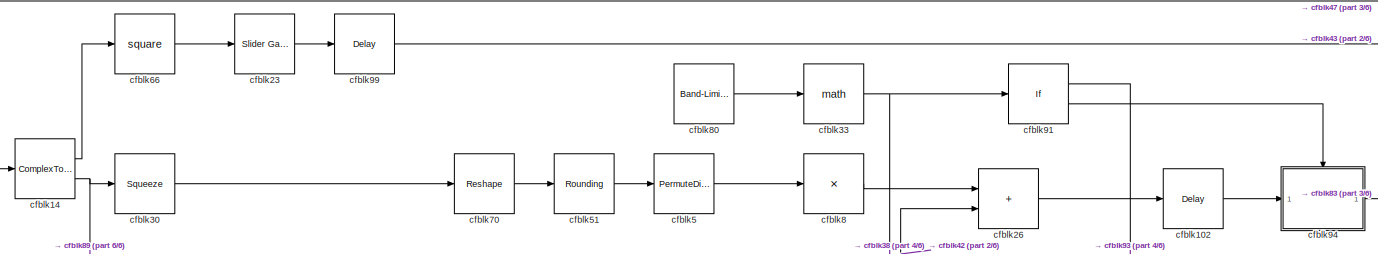
[diagram: root canvas - part 1/6, top left region]
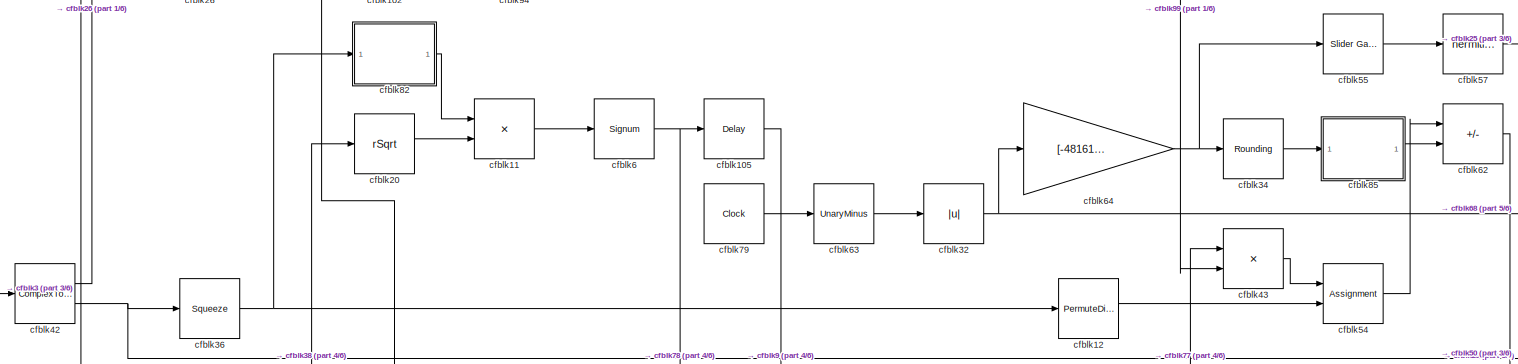
[diagram: root canvas - part 2/6, top center region]
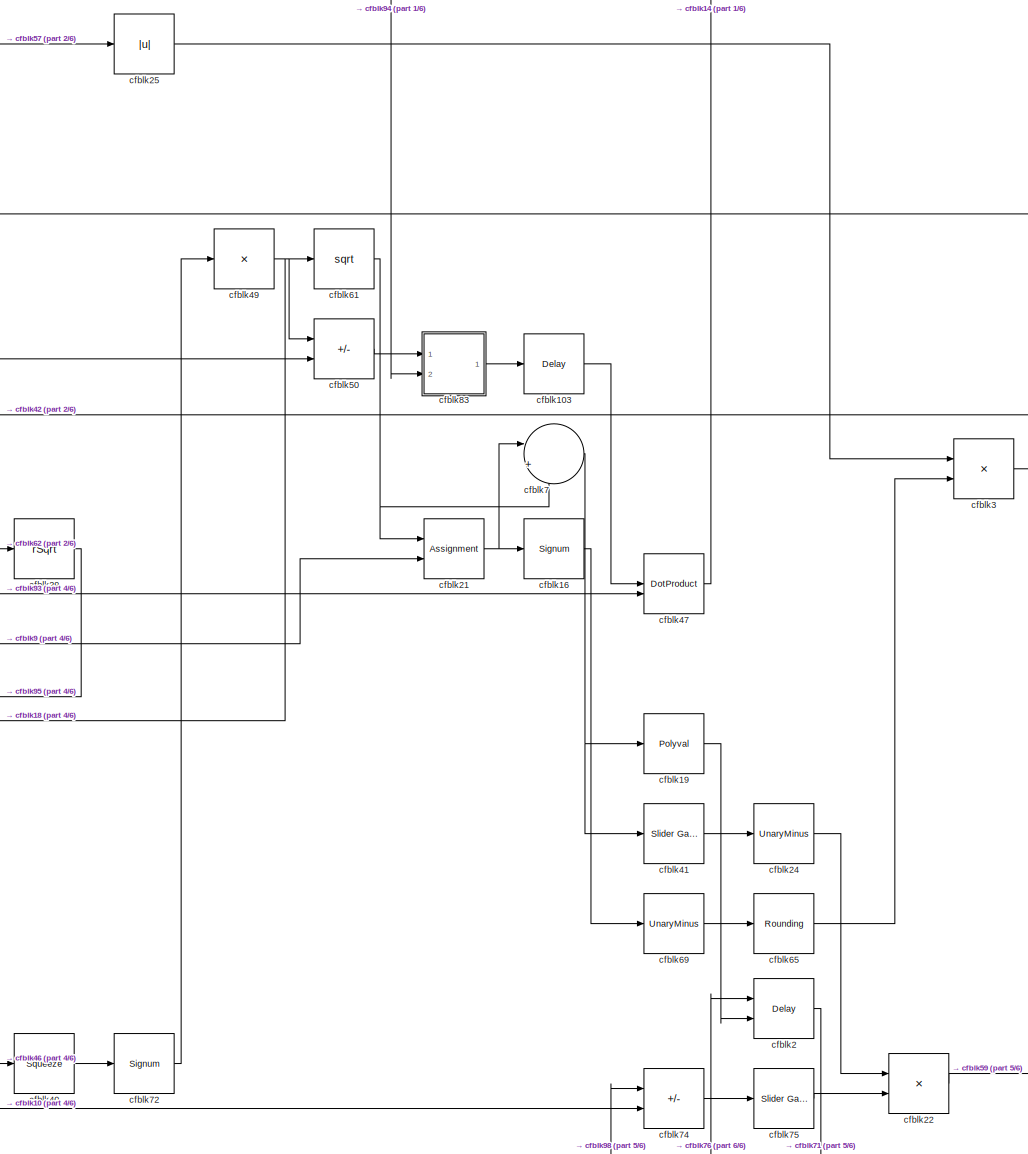
[diagram: root canvas - part 3/6, middle right region]
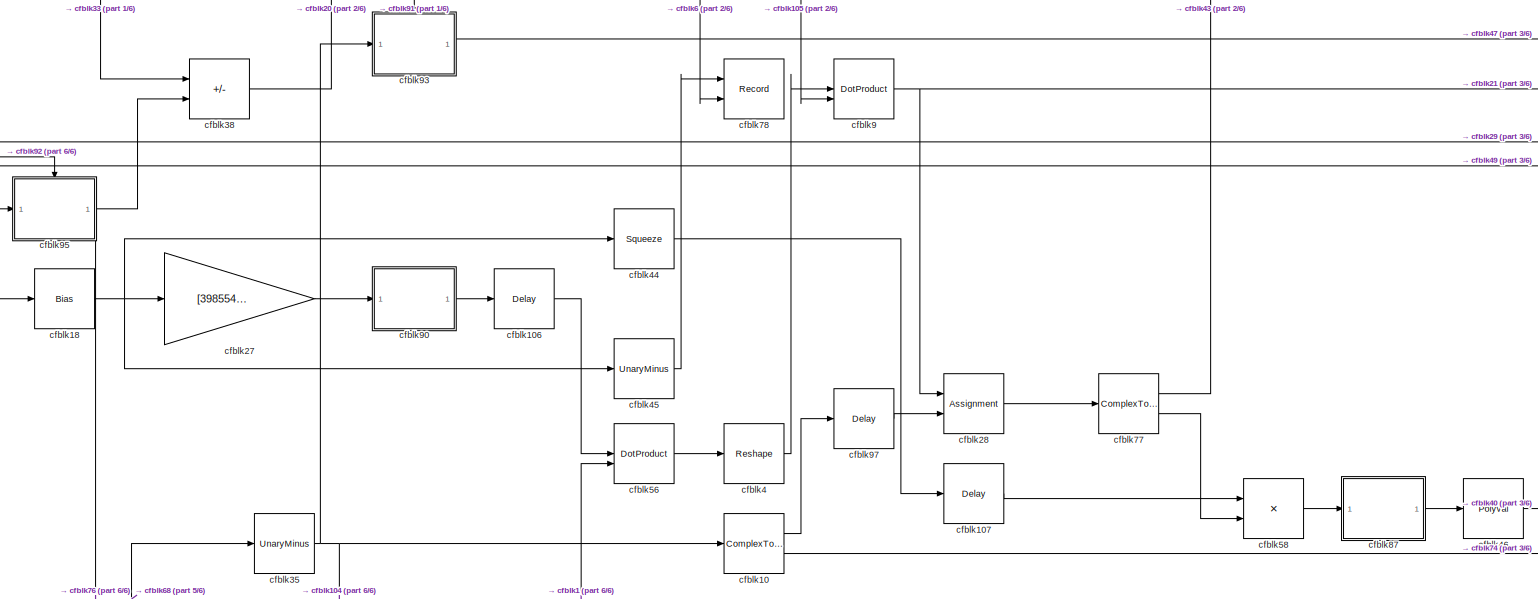
[diagram: root canvas - part 4/6, central region]
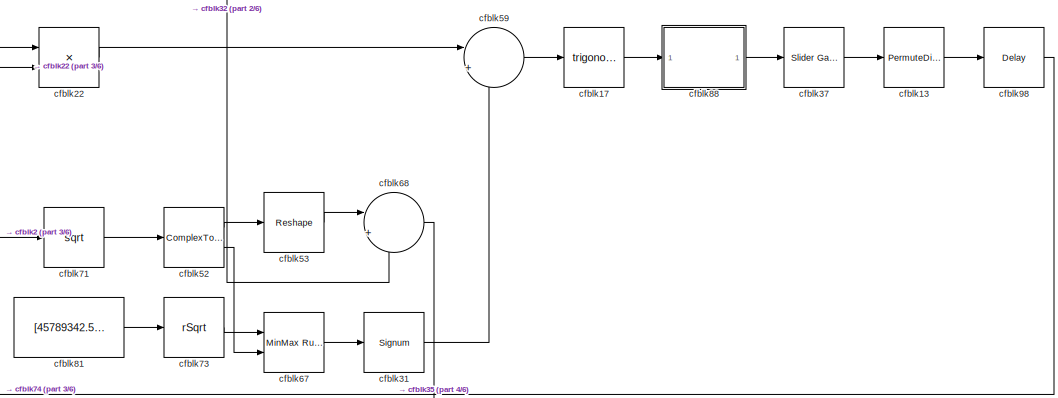
[diagram: root canvas - part 5/6, bottom right region]
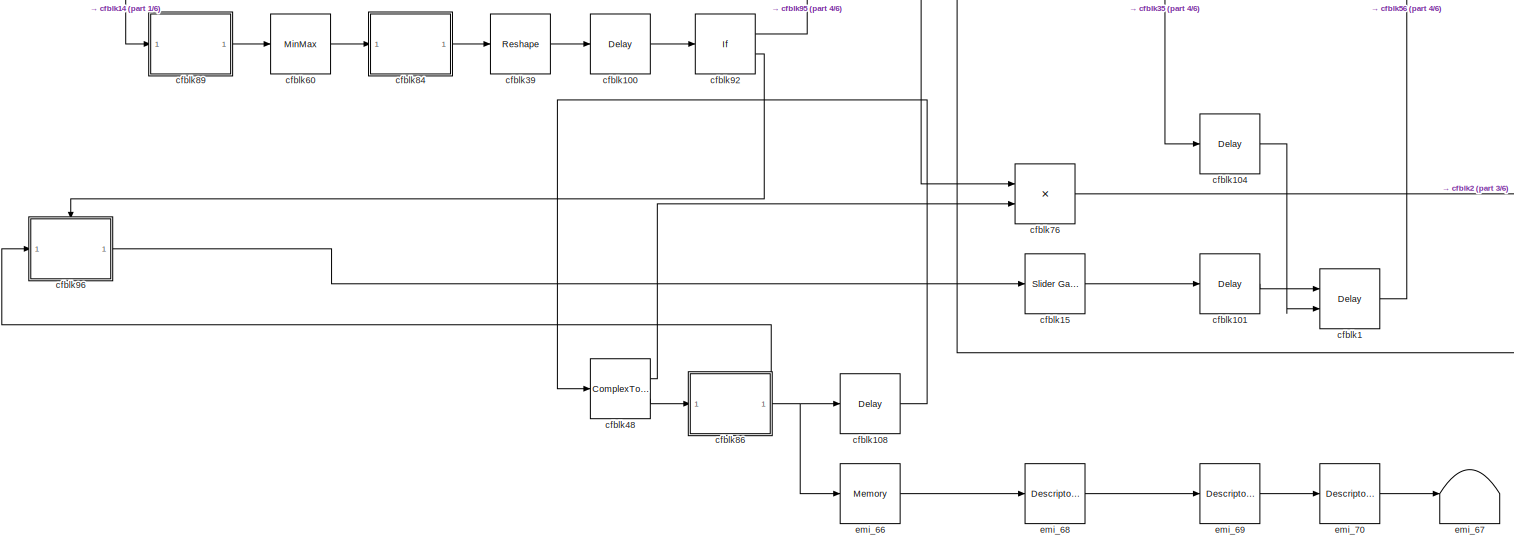
[diagram: root canvas - part 6/6, bottom left region]
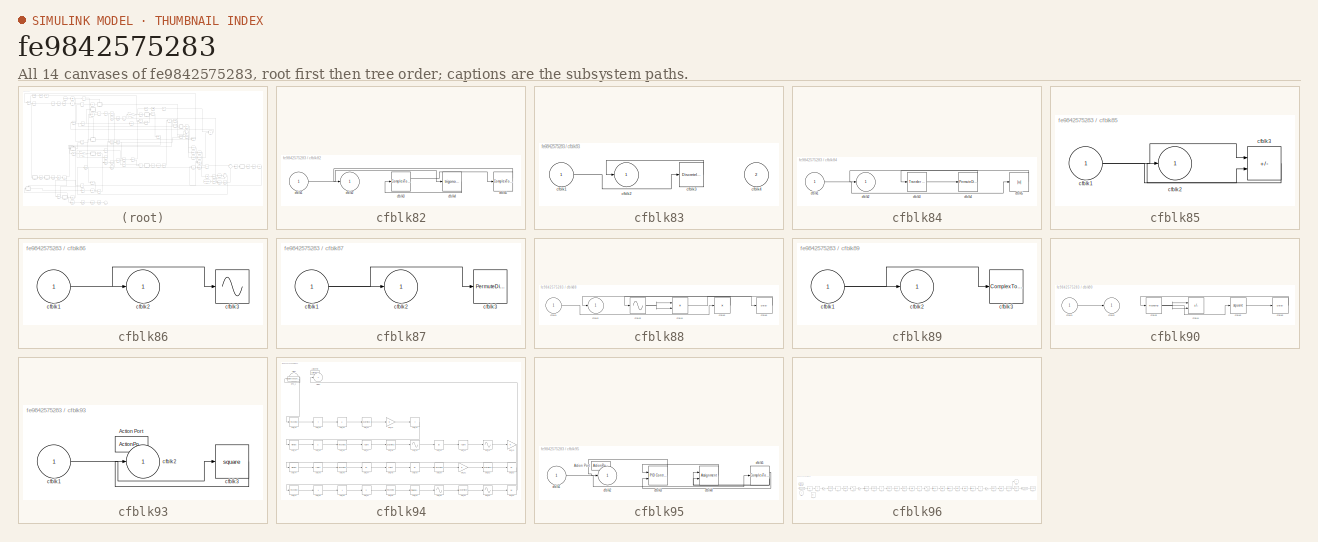
[diagram: thumbnail index - all 14 canvases of the model, root first then tree order]
MODEL slx_fe9842575283
KIND model
CONFIG AbsTol = auto
CONFIG EnableMultiTasking = off
CONFIG FixedStep = auto
CONFIG MaxStep = auto
CONFIG MinStep = auto
CONFIG RelTol = 1e-3
CONFIG SampleTimeConstraint = Unconstrained
CONFIG SolverName = VariableStepAuto
CONFIG StartTime = 0.0
CONFIG StopTime = 10.0
BLOCK [Delay] cfblk1
  DelayLengthSource = Input port
  InputPortMap = u0,p1
  Ports = [2, 1]
  SampleTime = 1
BLOCK [ComplexToRealImag] cfblk10
  Ports = [1, 2]
BLOCK [Delay] cfblk100
  InputPortMap = u0
  Ports = [1, 1]
  SampleTime = 1
BLOCK [Delay] cfblk101
  InputPortMap = u0
  Ports = [1, 1]
  SampleTime = 1
BLOCK [Delay] cfblk102
  InputPortMap = u0
  Ports = [1, 1]
  SampleTime = 1
BLOCK [Delay] cfblk103
  InputPortMap = u0
  Ports = [1, 1]
  SampleTime = 1
BLOCK [Delay] cfblk104
  InputPortMap = u0
  Ports = [1, 1]
  SampleTime = 1
BLOCK [Delay] cfblk105
  InputPortMap = u0
  Ports = [1, 1]
  SampleTime = 1
BLOCK [Delay] cfblk106
  InputPortMap = u0
  Ports = [1, 1]
  SampleTime = 1
BLOCK [Delay] cfblk107
  InputPortMap = u0
  Ports = [1, 1]
  SampleTime = 1
BLOCK [Delay] cfblk108
  InputPortMap = u0
  Ports = [1, 1]
  SampleTime = 1
BLOCK [Product] cfblk11
  Inputs = **
  Ports = [2, 1]
BLOCK [PermuteDimensions] cfblk12
BLOCK [PermuteDimensions] cfblk13
BLOCK [ComplexToMagnitudeAngle] cfblk14
  Ports = [1, 2]
BLOCK [Reference] cfblk15  REF=simulink/Math
Operations/Slider
Gain
  Ports = [1, 1]
  SourceBlock = simulink/Math\nOperations/Slider\nGain
  SourceProductBaseCode = SL
  SourceType = Slider Gain
BLOCK [Signum] cfblk16
BLOCK [Trigonometry] cfblk17
  Ports = [1, 1]
BLOCK [Bias] cfblk18
  Bias = [344195522.461753]
  SaturateOnIntegerOverflow = off
BLOCK [Polyval] cfblk19
  Coefs = [ +2.081618890e-019, -1.441693666e-014, +4.719686976e-010, -8.536869453e-006, +1.621573104e-001, -8.087801117e+001 ]
BLOCK [Delay] cfblk2
  InputPortMap = u0,e6
  Ports = [2, 1]
  SampleTime = 1
  ShowEnablePort = on
BLOCK [Sqrt] cfblk20
  AlgorithmType = Newton-Raphson
  Operator = rSqrt
BLOCK [Assignment] cfblk21
  DiagnosticForDimensions = Warning
  IndexOptions = Index vector (dialog)
  Indices = 1
  OutputSizes = 1
  Ports = [2, 1]
BLOCK [Product] cfblk22
  Ports = [2, 1]
BLOCK [Reference] cfblk23  REF=simulink/Math
Operations/Slider
Gain
  Ports = [1, 1]
  SourceBlock = simulink/Math\nOperations/Slider\nGain
  SourceProductBaseCode = SL
  SourceType = Slider Gain
BLOCK [UnaryMinus] cfblk24
BLOCK [Abs] cfblk25
  SaturateOnIntegerOverflow = off
BLOCK [Sum] cfblk26
  IconShape = rectangular
  Ports = [2, 1]
BLOCK [Gain] cfblk27
  Gain = [398554411.014848]
BLOCK [Assignment] cfblk28
  DiagnosticForDimensions = Warning
  IndexOptions = Index vector (dialog)
  Indices = 1
  OutputSizes = 1
  Ports = [2, 1]
BLOCK [Sqrt] cfblk29
  AlgorithmType = Newton-Raphson
  Operator = rSqrt
BLOCK [Product] cfblk3
  Ports = [2, 1]
BLOCK [Squeeze] cfblk30
BLOCK [Signum] cfblk31
BLOCK [Abs] cfblk32
  SaturateOnIntegerOverflow = off
BLOCK [Math] cfblk33
  Ports = [1, 1]
BLOCK [Rounding] cfblk34
BLOCK [UnaryMinus] cfblk35
BLOCK [Squeeze] cfblk36
BLOCK [Reference] cfblk37  REF=simulink/Math
Operations/Slider
Gain
  Ports = [1, 1]
  SourceBlock = simulink/Math\nOperations/Slider\nGain
  SourceProductBaseCode = SL
  SourceType = Slider Gain
BLOCK [Sum] cfblk38
  IconShape = rectangular
  Inputs = +-
  Ports = [2, 1]
BLOCK [Reshape] cfblk39
  Ports = [1, 1]
BLOCK [Reshape] cfblk4
  Ports = [1, 1]
BLOCK [Squeeze] cfblk40
BLOCK [Reference] cfblk41  REF=simulink/Math
Operations/Slider
Gain
  Ports = [1, 1]
  SourceBlock = simulink/Math\nOperations/Slider\nGain
  SourceProductBaseCode = SL
  SourceType = Slider Gain
BLOCK [ComplexToMagnitudeAngle] cfblk42
  Ports = [1, 2]
BLOCK [Product] cfblk43
  Inputs = **
  Ports = [2, 1]
BLOCK [Squeeze] cfblk44
BLOCK [UnaryMinus] cfblk45
BLOCK [Polyval] cfblk46
  Coefs = [ +2.081618890e-019, -1.441693666e-014, +4.719686976e-010, -8.536869453e-006, +1.621573104e-001, -8.087801117e+001 ]
BLOCK [DotProduct] cfblk47
  OutDataTypeStr = Inherit: Inherit via internal rule
BLOCK [ComplexToRealImag] cfblk48
  Ports = [1, 2]
BLOCK [Product] cfblk49
  Inputs = *
  Ports = [1, 1]
BLOCK [PermuteDimensions] cfblk5
BLOCK [Sum] cfblk50
  IconShape = rectangular
  Inputs = +-
  Ports = [2, 1]
BLOCK [Rounding] cfblk51
BLOCK [ComplexToMagnitudeAngle] cfblk52
  Ports = [1, 2]
BLOCK [Reshape] cfblk53
  Ports = [1, 1]
BLOCK [Assignment] cfblk54
  DiagnosticForDimensions = Warning
  IndexOptions = Index vector (dialog)
  Indices = 1
  OutputSizes = 1
  Ports = [2, 1]
BLOCK [Reference] cfblk55  REF=simulink/Math
Operations/Slider
Gain
  Ports = [1, 1]
  SourceBlock = simulink/Math\nOperations/Slider\nGain
  SourceProductBaseCode = SL
  SourceType = Slider Gain
BLOCK [DotProduct] cfblk56
  OutDataTypeStr = Inherit: Inherit via internal rule
BLOCK [Math] cfblk57
  Operator = hermitian
  Ports = [1, 1]
BLOCK [Product] cfblk58
  Ports = [2, 1]
BLOCK [Sum] cfblk59
  Inputs = |++
  Ports = [2, 1]
BLOCK [Signum] cfblk6
BLOCK [MinMax] cfblk60
  Ports = [1, 1]
BLOCK [Sqrt] cfblk61
BLOCK [Sum] cfblk62
  IconShape = rectangular
  Inputs = +-
  Ports = [2, 1]
BLOCK [UnaryMinus] cfblk63
BLOCK [Gain] cfblk64
  Gain = [-48161092.647964]
BLOCK [Rounding] cfblk65
BLOCK [Math] cfblk66
  Operator = square
  Ports = [1, 1]
BLOCK [Reference] cfblk67  REF=simulink/Math
Operations/MinMax
Running
Resettable
  Ports = [2, 1]
  SourceBlock = simulink/Math\nOperations/MinMax\nRunning\nResettable
  SourceProductBaseCode = SL
  SourceType = MinMax Running Resettable
BLOCK [Sum] cfblk68
  Inputs = |++
  Ports = [2, 1]
BLOCK [UnaryMinus] cfblk69
BLOCK [Sum] cfblk7
  Inputs = |++
  Ports = [2, 1]
BLOCK [Reshape] cfblk70
  Ports = [1, 1]
BLOCK [Sqrt] cfblk71
BLOCK [Signum] cfblk72
BLOCK [Sqrt] cfblk73
  AlgorithmType = Newton-Raphson
  Operator = rSqrt
BLOCK [Sum] cfblk74
  IconShape = rectangular
  Inputs = --
  Ports = [2, 1]
BLOCK [Reference] cfblk75  REF=simulink/Math
Operations/Slider
Gain
  Ports = [1, 1]
  SourceBlock = simulink/Math\nOperations/Slider\nGain
  SourceProductBaseCode = SL
  SourceType = Slider Gain
BLOCK [Product] cfblk76
  Ports = [2, 1]
BLOCK [ComplexToRealImag] cfblk77
  Ports = [1, 2]
BLOCK [Record] cfblk78
  CompatibilityTag = XY
  FileSettingsInternal = {"entries":[{"content":{"excelSettings":{"content":{},"type":"Streamout.ExcelSettings"}},"type":"Streamout.FileSettingStorage","uuid":"ac85a95f-4be8-4778-839d-d844e6bad3ff"}],"packageUris":["http://schema.mathworks.com/mf0/streamout_blocks/R2020a"],"version":"1.0"}
  Layout = [1 1]
  Ports = [2]
  SignalsInternal = {"entries":[{"content":{"signals":[{"content":{"blockPath":["sampleModel400_pp_1568_1_difftest/cfblk78"],"channel":[],"dimensions":[1],"domain":"sampleModel400_pp_1568_1_difftest/cfblk78","lineColor":"#ff6929","plots":[],"port":1,"sid":[""],"signalID":66299,"signalName":"cfblk45"},"type":"RecordBlkView.Signal","uuid":"a7a329db-ddd2-4490-90a3-0e073e7fe2cc"},{"content":{"blockPath":["sampleModel400_...<+458ch>
  VisualizationBindings = {"xyplotplugin":{"info":[{"series":[],"subplotID":1}]}}
BLOCK [Clock] cfblk79
BLOCK [Product] cfblk8
  Inputs = *
  Ports = [1, 1]
BLOCK [Reference] cfblk80  REF=simulink/Sources/Band-Limited
White Noise
  Ports = [0, 1]
  SourceBlock = simulink/Sources/Band-Limited\nWhite Noise
  SourceProductBaseCode = SL
  SourceType = Band-Limited White Noise.
BLOCK [Constant] cfblk81
  SampleTime = 1
  Value = [45789342.582488]
BLOCK [SubSystem] cfblk82
  Ports = [1, 1]
  RequestExecContextInheritance = off
BLOCK [Inport] cfblk82/cfblk1
BLOCK [Outport] cfblk82/cfblk2
BLOCK [ComplexToMagnitudeAngle] cfblk82/cfblk3
  Ports = [1, 2]
BLOCK [Trigonometry] cfblk82/cfblk4
  Ports = [1, 1]
BLOCK [ComplexToMagnitudeAngle] cfblk82/cfblk5
  Ports = [1, 2]
BLOCK [SubSystem] cfblk83
  Ports = [2, 1]
  RequestExecContextInheritance = off
BLOCK [Inport] cfblk83/cfblk1
BLOCK [Outport] cfblk83/cfblk2
BLOCK [DiscreteIntegrator] cfblk83/cfblk3
  ICPrevOutput = DiscIntNeverNeededParam
  ICPrevScaledInput = DiscIntNeverNeededParam
  InitialConditionSetting = Auto
  Ports = [1, 1]
BLOCK [Inport] cfblk83/cfblk4
  Port = 2
BLOCK [SubSystem] cfblk84
  Ports = [1, 1]
  RequestExecContextInheritance = off
BLOCK [Inport] cfblk84/cfblk1
BLOCK [Outport] cfblk84/cfblk2
BLOCK [Reference] cfblk84/cfblk3  REF=simulink/Discrete/Transfer Fcn
First Order
  Ports = [1, 1]
  SourceBlock = simulink/Discrete/Transfer Fcn\nFirst Order
  SourceProductBaseCode = SL
  SourceType = First Order Transfer Fcn
BLOCK [PermuteDimensions] cfblk84/cfblk4
BLOCK [Abs] cfblk84/cfblk5
  SaturateOnIntegerOverflow = off
BLOCK [SubSystem] cfblk85
  Ports = [1, 1]
  RequestExecContextInheritance = off
BLOCK [Inport] cfblk85/cfblk1
BLOCK [Outport] cfblk85/cfblk2
BLOCK [Sum] cfblk85/cfblk3
  IconShape = rectangular
  Inputs = +-
  Ports = [2, 1]
BLOCK [SubSystem] cfblk86
  Ports = [1, 1]
  RequestExecContextInheritance = off
BLOCK [Inport] cfblk86/cfblk1
BLOCK [Outport] cfblk86/cfblk2
BLOCK [Sin] cfblk86/cfblk3
  Ports = [1, 1]
  SampleTime = 0
  TimeSource = Use external signal
BLOCK [SubSystem] cfblk87
  Ports = [1, 1]
  RequestExecContextInheritance = off
BLOCK [Inport] cfblk87/cfblk1
BLOCK [Outport] cfblk87/cfblk2
BLOCK [PermuteDimensions] cfblk87/cfblk3
BLOCK [SubSystem] cfblk88
  Ports = [1, 1]
  RequestExecContextInheritance = off
BLOCK [Inport] cfblk88/cfblk1
BLOCK [Outport] cfblk88/cfblk2
BLOCK [Sin] cfblk88/cfblk3
  Ports = [1, 1]
  SampleTime = 0
  TimeSource = Use external signal
BLOCK [Product] cfblk88/cfblk4
  Inputs = **
  Ports = [2, 1]
BLOCK [Product] cfblk88/cfblk5
  Inputs = *
  Ports = [1, 1]
BLOCK [Delay] cfblk88/cfblk6
  InputPortMap = u0
  Ports = [1, 1]
  SampleTime = 1
BLOCK [SubSystem] cfblk89
  Ports = [1, 1]
  RequestExecContextInheritance = off
BLOCK [Inport] cfblk89/cfblk1
BLOCK [Outport] cfblk89/cfblk2
BLOCK [ComplexToRealImag] cfblk89/cfblk3
  Ports = [1, 2]
BLOCK [DotProduct] cfblk9
  OutDataTypeStr = Inherit: Inherit via internal rule
BLOCK [SubSystem] cfblk90
  Ports = [1, 1]
  RequestExecContextInheritance = off
BLOCK [Inport] cfblk90/cfblk1
BLOCK [Outport] cfblk90/cfblk2
BLOCK [Rounding] cfblk90/cfblk3
BLOCK [Sum] cfblk90/cfblk4
  IconShape = rectangular
  Inputs = -+
  Ports = [2, 1]
BLOCK [Math] cfblk90/cfblk5
  Operator = square
  Ports = [1, 1]
BLOCK [Delay] cfblk90/cfblk6
  InputPortMap = u0
  Ports = [1, 1]
  SampleTime = 1
BLOCK [If] cfblk91
  IfExpression = u1 >= 0
  Ports = [1, 2]
  SampleTime = 1
BLOCK [If] cfblk92
  IfExpression = u1 >= 0
  Ports = [1, 2]
  SampleTime = 1
BLOCK [SubSystem] cfblk93
  Ports = [1, 1, 0, 0, 0, 0, 0, 1]
  RequestExecContextInheritance = off
  TreatAsAtomicUnit = on
BLOCK [ActionPort] cfblk93/Action Port
  ActionPortLabel = if(u1 >= 0)
BLOCK [Inport] cfblk93/cfblk1
BLOCK [Outport] cfblk93/cfblk2
BLOCK [Math] cfblk93/cfblk3
  Operator = square
  Ports = [1, 1]
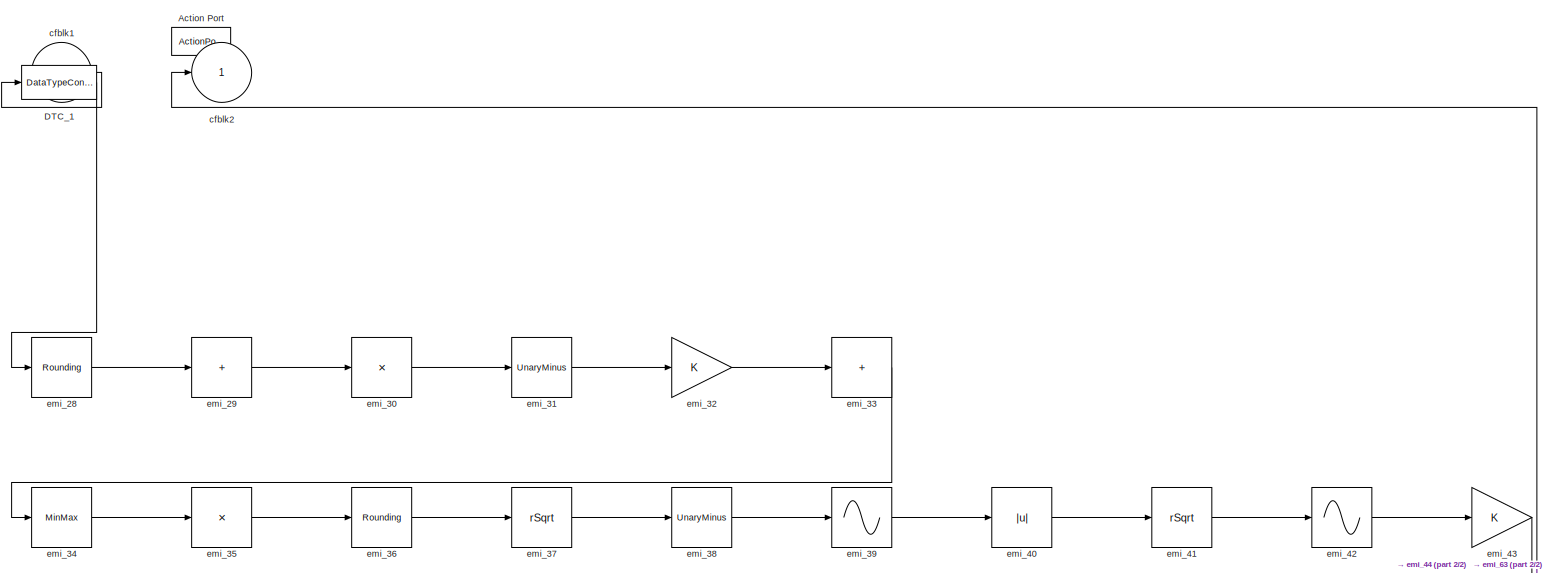
[diagram: cfblk94 - part 1/2, full width, middle band]
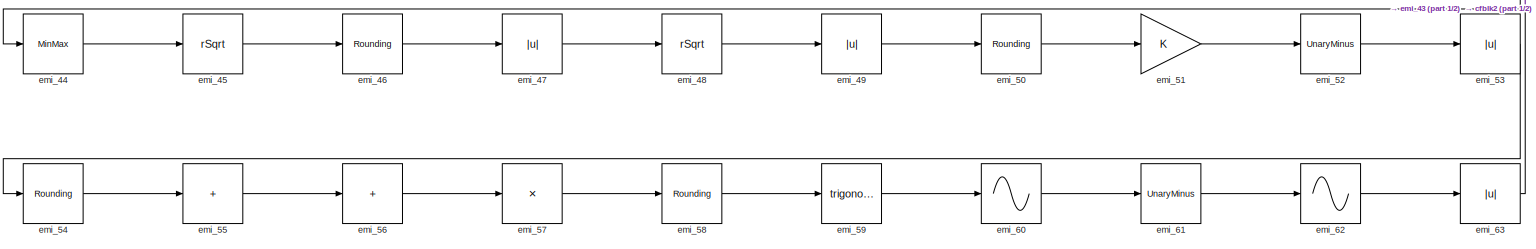
[diagram: cfblk94 - part 2/2, full width, bottom band]
BLOCK [SubSystem] cfblk94
  Ports = [1, 1, 0, 0, 0, 0, 0, 1]
  RequestExecContextInheritance = off
  TreatAsAtomicUnit = on
BLOCK [ActionPort] cfblk94/Action Port
  ActionPortLabel = else
BLOCK [DataTypeConversion] cfblk94/DTC_1
  OutDataTypeStr = double
  RndMeth = Floor
  SaturateOnIntegerOverflow = off
BLOCK [Inport] cfblk94/cfblk1
BLOCK [Outport] cfblk94/cfblk2
BLOCK [Rounding] cfblk94/emi_28
BLOCK [Sum] cfblk94/emi_29
  IconShape = rectangular
  Inputs = +
  Ports = [1, 1]
BLOCK [Product] cfblk94/emi_30
  Inputs = *
  Ports = [1, 1]
BLOCK [UnaryMinus] cfblk94/emi_31
BLOCK [Gain] cfblk94/emi_32
BLOCK [Sum] cfblk94/emi_33
  IconShape = rectangular
  Inputs = +
  Ports = [1, 1]
BLOCK [MinMax] cfblk94/emi_34
  Ports = [1, 1]
BLOCK [Product] cfblk94/emi_35
  Inputs = *
  Ports = [1, 1]
BLOCK [Rounding] cfblk94/emi_36
BLOCK [Sqrt] cfblk94/emi_37
  Operator = rSqrt
BLOCK [UnaryMinus] cfblk94/emi_38
BLOCK [Sin] cfblk94/emi_39
  Ports = [1, 1]
  SampleTime = 0
  TimeSource = Use external signal
BLOCK [Abs] cfblk94/emi_40
  SaturateOnIntegerOverflow = off
BLOCK [Sqrt] cfblk94/emi_41
  Operator = rSqrt
BLOCK [Sin] cfblk94/emi_42
  Ports = [1, 1]
  SampleTime = 0
  TimeSource = Use external signal
BLOCK [Gain] cfblk94/emi_43
BLOCK [MinMax] cfblk94/emi_44
  Ports = [1, 1]
BLOCK [Sqrt] cfblk94/emi_45
  Operator = rSqrt
BLOCK [Rounding] cfblk94/emi_46
BLOCK [Abs] cfblk94/emi_47
  SaturateOnIntegerOverflow = off
BLOCK [Sqrt] cfblk94/emi_48
  Operator = rSqrt
BLOCK [Abs] cfblk94/emi_49
  SaturateOnIntegerOverflow = off
BLOCK [Rounding] cfblk94/emi_50
BLOCK [Gain] cfblk94/emi_51
BLOCK [UnaryMinus] cfblk94/emi_52
BLOCK [Abs] cfblk94/emi_53
  SaturateOnIntegerOverflow = off
BLOCK [Rounding] cfblk94/emi_54
BLOCK [Sum] cfblk94/emi_55
  IconShape = rectangular
  Inputs = +
  Ports = [1, 1]
BLOCK [Sum] cfblk94/emi_56
  IconShape = rectangular
  Inputs = +
  Ports = [1, 1]
BLOCK [Product] cfblk94/emi_57
  Inputs = *
  Ports = [1, 1]
BLOCK [Rounding] cfblk94/emi_58
BLOCK [Trigonometry] cfblk94/emi_59
  Ports = [1, 1]
BLOCK [Sin] cfblk94/emi_60
  Ports = [1, 1]
  SampleTime = 0
  TimeSource = Use external signal
BLOCK [UnaryMinus] cfblk94/emi_61
BLOCK [Sin] cfblk94/emi_62
  Ports = [1, 1]
  SampleTime = 0
  TimeSource = Use external signal
BLOCK [Abs] cfblk94/emi_63
  SaturateOnIntegerOverflow = off
BLOCK [SubSystem] cfblk95
  Ports = [1, 1, 0, 0, 0, 0, 0, 1]
  RequestExecContextInheritance = off
  TreatAsAtomicUnit = on
BLOCK [ActionPort] cfblk95/Action Port
  ActionPortLabel = if(u1 >= 0)
BLOCK [Inport] cfblk95/cfblk1
BLOCK [Outport] cfblk95/cfblk2
BLOCK [Reference] cfblk95/cfblk3  REF=slpidlib/PID Controller (2DOF)
  Ports = [2, 1]
  SourceBlock = slpidlib/PID Controller (2DOF)
  SourceProductBaseCode = SL
  SourceType = PID 2dof
BLOCK [Assignment] cfblk95/cfblk4
  DiagnosticForDimensions = Warning
  IndexOptions = Index vector (dialog)
  Indices = 1
  OutputSizes = 1
  Ports = [2, 1]
BLOCK [ComplexToMagnitudeAngle] cfblk95/cfblk5
  Ports = [1, 2]
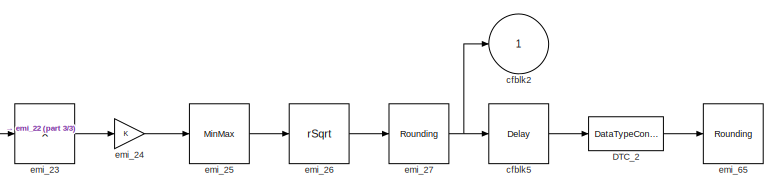
[diagram: cfblk96 - part 1/3, middle right region]
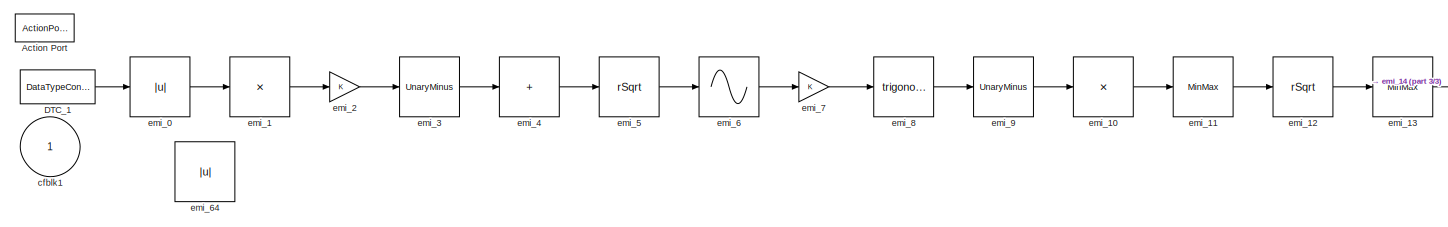
[diagram: cfblk96 - part 2/3, middle left region]
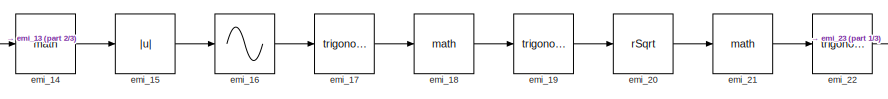
[diagram: cfblk96 - part 3/3, central region]
BLOCK [SubSystem] cfblk96
  Ports = [1, 1, 0, 0, 0, 0, 0, 1]
  RequestExecContextInheritance = off
  TreatAsAtomicUnit = on
BLOCK [ActionPort] cfblk96/Action Port
  ActionPortLabel = else
BLOCK [DataTypeConversion] cfblk96/DTC_1
  OutDataTypeStr = double
  RndMeth = Floor
  SaturateOnIntegerOverflow = off
BLOCK [DataTypeConversion] cfblk96/DTC_2
  OutDataTypeStr = double
  RndMeth = Floor
  SaturateOnIntegerOverflow = off
BLOCK [Inport] cfblk96/cfblk1
BLOCK [Outport] cfblk96/cfblk2
BLOCK [Delay] cfblk96/cfblk5
  InputPortMap = u0
  Ports = [1, 1]
BLOCK [Abs] cfblk96/emi_0
  SaturateOnIntegerOverflow = off
BLOCK [Product] cfblk96/emi_1
  Inputs = *
  Ports = [1, 1]
BLOCK [Product] cfblk96/emi_10
  Inputs = *
  Ports = [1, 1]
BLOCK [MinMax] cfblk96/emi_11
  Ports = [1, 1]
BLOCK [Sqrt] cfblk96/emi_12
  Operator = rSqrt
BLOCK [MinMax] cfblk96/emi_13
  Ports = [1, 1]
BLOCK [Math] cfblk96/emi_14
  Ports = [1, 1]
BLOCK [Abs] cfblk96/emi_15
  SaturateOnIntegerOverflow = off
BLOCK [Sin] cfblk96/emi_16
  Ports = [1, 1]
  SampleTime = 0
  TimeSource = Use external signal
BLOCK [Trigonometry] cfblk96/emi_17
  Ports = [1, 1]
BLOCK [Math] cfblk96/emi_18
  Ports = [1, 1]
BLOCK [Trigonometry] cfblk96/emi_19
  Ports = [1, 1]
BLOCK [Gain] cfblk96/emi_2
BLOCK [Sqrt] cfblk96/emi_20
  Operator = rSqrt
BLOCK [Math] cfblk96/emi_21
  Ports = [1, 1]
BLOCK [Trigonometry] cfblk96/emi_22
  Ports = [1, 1]
BLOCK [Product] cfblk96/emi_23
  Inputs = *
  Ports = [1, 1]
BLOCK [Gain] cfblk96/emi_24
BLOCK [MinMax] cfblk96/emi_25
  Ports = [1, 1]
BLOCK [Sqrt] cfblk96/emi_26
  Operator = rSqrt
BLOCK [Rounding] cfblk96/emi_27
BLOCK [UnaryMinus] cfblk96/emi_3
BLOCK [Sum] cfblk96/emi_4
  IconShape = rectangular
  Inputs = +
  Ports = [1, 1]
BLOCK [Sqrt] cfblk96/emi_5
  Operator = rSqrt
BLOCK [Sin] cfblk96/emi_6
  Ports = [1, 1]
  SampleTime = 0
  TimeSource = Use external signal
BLOCK [Abs] cfblk96/emi_64
  SaturateOnIntegerOverflow = off
BLOCK [Rounding] cfblk96/emi_65
BLOCK [Gain] cfblk96/emi_7
BLOCK [Trigonometry] cfblk96/emi_8
  Ports = [1, 1]
BLOCK [UnaryMinus] cfblk96/emi_9
BLOCK [Delay] cfblk97
  InputPortMap = u0
  Ports = [1, 1]
  SampleTime = 1
BLOCK [Delay] cfblk98
  InputPortMap = u0
  Ports = [1, 1]
  SampleTime = 1
BLOCK [Delay] cfblk99
  InputPortMap = u0
  Ports = [1, 1]
  SampleTime = 1
BLOCK [Memory] emi_66
BLOCK [Terminator] emi_67
BLOCK [DescriptorStateSpace] emi_68
  Ports = [1, 1]
BLOCK [DescriptorStateSpace] emi_69
  Ports = [1, 1]
BLOCK [DescriptorStateSpace] emi_70
  Ports = [1, 1]
LINE cfblk100:1 -> cfblk92:1
LINE cfblk101:1 -> cfblk1:1
LINE cfblk102:1 -> cfblk94:1
LINE cfblk103:1 -> cfblk47:1
LINE cfblk104:1 -> cfblk1:2
LINE cfblk105:1 -> cfblk9:2
LINE cfblk106:1 -> cfblk56:1
LINE cfblk107:1 -> cfblk58:1
LINE cfblk108:1 -> cfblk48:1
LINE cfblk10:1 -> cfblk97:1
LINE cfblk10:2 -> cfblk74:2
LINE cfblk11:1 -> cfblk6:1
LINE cfblk12:1 -> cfblk54:2
LINE cfblk13:1 -> cfblk98:1
LINE cfblk14:1 -> cfblk66:1
NET cfblk14:2 -> cfblk30:1, cfblk89:1
LINE cfblk15:1 -> cfblk101:1
LINE cfblk16:1 -> cfblk69:1
LINE cfblk17:1 -> cfblk88:1
NET cfblk18:1 -> cfblk27:1, cfblk44:1, cfblk45:1
LINE cfblk19:1 -> cfblk2:2
LINE cfblk1:1 -> cfblk56:2
LINE cfblk20:1 -> cfblk11:2
NET cfblk21:1 -> cfblk16:1, cfblk7:1
LINE cfblk22:1 -> cfblk59:1
LINE cfblk23:1 -> cfblk99:1
LINE cfblk24:1 -> cfblk22:1
LINE cfblk25:1 -> cfblk3:1
LINE cfblk26:1 -> cfblk102:1
LINE cfblk27:1 -> cfblk90:1
LINE cfblk28:1 -> cfblk77:1
LINE cfblk29:1 -> cfblk95:1
LINE cfblk2:1 -> cfblk71:1
LINE cfblk30:1 -> cfblk70:1
LINE cfblk31:1 -> cfblk59:2
NET cfblk32:1 -> cfblk64:1, cfblk68:2
NET cfblk33:1 -> cfblk38:1, cfblk91:1
LINE cfblk34:1 -> cfblk85:1
NET cfblk35:1 -> cfblk104:1, cfblk10:1, cfblk93:1
NET cfblk36:1 -> cfblk12:1, cfblk82:1
LINE cfblk37:1 -> cfblk13:1
LINE cfblk38:1 -> cfblk20:1
LINE cfblk39:1 -> cfblk100:1
LINE cfblk3:1 -> cfblk42:1
LINE cfblk40:1 -> cfblk72:1
LINE cfblk41:1 -> cfblk24:1
LINE cfblk42:1 -> cfblk26:2
NET cfblk42:2 -> cfblk36:1, cfblk50:2
LINE cfblk43:1 -> cfblk54:1
LINE cfblk44:1 -> cfblk107:1
LINE cfblk45:1 -> cfblk78:1
LINE cfblk46:1 -> cfblk40:1
LINE cfblk47:1 -> cfblk14:1
LINE cfblk48:1 -> cfblk76:2
LINE cfblk48:2 -> cfblk86:1
NET cfblk49:1 -> cfblk18:1, cfblk50:1, cfblk61:1
LINE cfblk4:1 -> cfblk9:1
LINE cfblk50:1 -> cfblk83:1
LINE cfblk51:1 -> cfblk5:1
LINE cfblk52:1 -> cfblk53:1
LINE cfblk52:2 -> cfblk67:2
LINE cfblk53:1 -> cfblk68:1
LINE cfblk54:1 -> cfblk62:1
LINE cfblk55:1 -> cfblk57:1
LINE cfblk56:1 -> cfblk4:1
LINE cfblk57:1 -> cfblk25:1
LINE cfblk58:1 -> cfblk87:1
LINE cfblk59:1 -> cfblk17:1
LINE cfblk5:1 -> cfblk8:1
LINE cfblk60:1 -> cfblk84:1
NET cfblk61:1 -> cfblk21:1, cfblk7:2
LINE cfblk62:1 -> cfblk29:1
LINE cfblk63:1 -> cfblk32:1
NET cfblk64:1 -> cfblk34:1, cfblk55:1
LINE cfblk65:1 -> cfblk3:2
LINE cfblk66:1 -> cfblk23:1
LINE cfblk67:1 -> cfblk31:1
LINE cfblk68:1 -> cfblk35:1
LINE cfblk69:1 -> cfblk65:1
NET cfblk6:1 -> cfblk105:1, cfblk78:2
LINE cfblk70:1 -> cfblk51:1
LINE cfblk71:1 -> cfblk52:1
LINE cfblk72:1 -> cfblk49:1
LINE cfblk73:1 -> cfblk67:1
LINE cfblk74:1 -> cfblk75:1
LINE cfblk75:1 -> cfblk22:2
LINE cfblk76:1 -> cfblk2:1
LINE cfblk77:1 -> cfblk43:1
LINE cfblk77:2 -> cfblk58:2
LINE cfblk79:1 -> cfblk63:1
NET cfblk7:1 -> cfblk19:1, cfblk41:1
LINE cfblk80:1 -> cfblk33:1
LINE cfblk81:1 -> cfblk73:1
LINE cfblk82/cfblk1:1 -> cfblk82/cfblk4:1
LINE cfblk82/cfblk3:1 -> cfblk82/cfblk5:1
LINE cfblk82/cfblk4:1 -> cfblk82/cfblk3:1
LINE cfblk82/cfblk5:1 -> cfblk82/cfblk2:1
LINE cfblk82:1 -> cfblk11:1
LINE cfblk83/cfblk1:1 -> cfblk83/cfblk3:1
LINE cfblk83/cfblk3:1 -> cfblk83/cfblk2:1
LINE cfblk83:1 -> cfblk103:1
LINE cfblk84/cfblk1:1 -> cfblk84/cfblk5:1
LINE cfblk84/cfblk3:1 -> cfblk84/cfblk4:1
LINE cfblk84/cfblk4:1 -> cfblk84/cfblk2:1
LINE cfblk84/cfblk5:1 -> cfblk84/cfblk3:1
LINE cfblk84:1 -> cfblk39:1
NET cfblk85/cfblk1:1 -> cfblk85/cfblk3:1, cfblk85/cfblk3:2
LINE cfblk85/cfblk3:1 -> cfblk85/cfblk2:1
LINE cfblk85:1 -> cfblk62:2
NET cfblk86/cfblk1:1 -> cfblk86/cfblk2:1, cfblk86/cfblk3:1
NET cfblk86:1 -> cfblk108:1, cfblk96:1, emi_66:1
NET cfblk87/cfblk1:1 -> cfblk87/cfblk2:1, cfblk87/cfblk3:1
LINE cfblk87:1 -> cfblk46:1
LINE cfblk88/cfblk1:1 -> cfblk88/cfblk5:1
NET cfblk88/cfblk3:1 -> cfblk88/cfblk4:1, cfblk88/cfblk4:2
LINE cfblk88/cfblk4:1 -> cfblk88/cfblk6:1
LINE cfblk88/cfblk5:1 -> cfblk88/cfblk2:1
LINE cfblk88/cfblk6:1 -> cfblk88/cfblk3:1
LINE cfblk88:1 -> cfblk37:1
NET cfblk89/cfblk1:1 -> cfblk89/cfblk2:1, cfblk89/cfblk3:1
LINE cfblk89:1 -> cfblk60:1
LINE cfblk8:1 -> cfblk26:1
LINE cfblk90/cfblk1:1 -> cfblk90/cfblk2:1
NET cfblk90/cfblk3:1 -> cfblk90/cfblk4:1, cfblk90/cfblk4:2, cfblk90/cfblk5:1
LINE cfblk90/cfblk5:1 -> cfblk90/cfblk6:1
LINE cfblk90/cfblk6:1 -> cfblk90/cfblk3:1
LINE cfblk90:1 -> cfblk106:1
LINE cfblk91:1 -> cfblk93:ifaction
LINE cfblk91:2 -> cfblk94:ifaction
LINE cfblk92:1 -> cfblk95:ifaction
LINE cfblk92:2 -> cfblk96:ifaction
LINE cfblk93/cfblk1:1 -> cfblk93/cfblk3:1
LINE cfblk93/cfblk3:1 -> cfblk93/cfblk2:1
LINE cfblk93:1 -> cfblk47:2
LINE cfblk94/DTC_1:1 -> cfblk94/emi_28:1
LINE cfblk94/cfblk1:1 -> cfblk94/DTC_1:1
LINE cfblk94/emi_28:1 -> cfblk94/emi_29:1
LINE cfblk94/emi_29:1 -> cfblk94/emi_30:1
LINE cfblk94/emi_30:1 -> cfblk94/emi_31:1
LINE cfblk94/emi_31:1 -> cfblk94/emi_32:1
LINE cfblk94/emi_32:1 -> cfblk94/emi_33:1
LINE cfblk94/emi_33:1 -> cfblk94/emi_34:1
LINE cfblk94/emi_34:1 -> cfblk94/emi_35:1
LINE cfblk94/emi_35:1 -> cfblk94/emi_36:1
LINE cfblk94/emi_36:1 -> cfblk94/emi_37:1
LINE cfblk94/emi_37:1 -> cfblk94/emi_38:1
LINE cfblk94/emi_38:1 -> cfblk94/emi_39:1
LINE cfblk94/emi_39:1 -> cfblk94/emi_40:1
LINE cfblk94/emi_40:1 -> cfblk94/emi_41:1
LINE cfblk94/emi_41:1 -> cfblk94/emi_42:1
LINE cfblk94/emi_42:1 -> cfblk94/emi_43:1
LINE cfblk94/emi_43:1 -> cfblk94/emi_44:1
LINE cfblk94/emi_44:1 -> cfblk94/emi_45:1
LINE cfblk94/emi_45:1 -> cfblk94/emi_46:1
LINE cfblk94/emi_46:1 -> cfblk94/emi_47:1
LINE cfblk94/emi_47:1 -> cfblk94/emi_48:1
LINE cfblk94/emi_48:1 -> cfblk94/emi_49:1
LINE cfblk94/emi_49:1 -> cfblk94/emi_50:1
LINE cfblk94/emi_50:1 -> cfblk94/emi_51:1
LINE cfblk94/emi_51:1 -> cfblk94/emi_52:1
LINE cfblk94/emi_52:1 -> cfblk94/emi_53:1
LINE cfblk94/emi_53:1 -> cfblk94/emi_54:1
LINE cfblk94/emi_54:1 -> cfblk94/emi_55:1
LINE cfblk94/emi_55:1 -> cfblk94/emi_56:1
LINE cfblk94/emi_56:1 -> cfblk94/emi_57:1
LINE cfblk94/emi_57:1 -> cfblk94/emi_58:1
LINE cfblk94/emi_58:1 -> cfblk94/emi_59:1
LINE cfblk94/emi_59:1 -> cfblk94/emi_60:1
LINE cfblk94/emi_60:1 -> cfblk94/emi_61:1
LINE cfblk94/emi_61:1 -> cfblk94/emi_62:1
LINE cfblk94/emi_62:1 -> cfblk94/emi_63:1
LINE cfblk94/emi_63:1 -> cfblk94/cfblk2:1
LINE cfblk94:1 -> cfblk83:2
LINE cfblk95/cfblk1:1 -> cfblk95/cfblk5:1
LINE cfblk95/cfblk3:1 -> cfblk95/cfblk2:1
LINE cfblk95/cfblk4:1 -> cfblk95/cfblk3:1
LINE cfblk95/cfblk5:1 -> cfblk95/cfblk3:2
NET cfblk95/cfblk5:2 -> cfblk95/cfblk4:1, cfblk95/cfblk4:2
NET cfblk95:1 -> cfblk38:2, cfblk76:1
LINE cfblk96/DTC_1:1 -> cfblk96/emi_0:1
LINE cfblk96/DTC_2:1 -> cfblk96/emi_65:1
LINE cfblk96/cfblk5:1 -> cfblk96/DTC_2:1
LINE cfblk96/emi_0:1 -> cfblk96/emi_1:1
LINE cfblk96/emi_10:1 -> cfblk96/emi_11:1
LINE cfblk96/emi_11:1 -> cfblk96/emi_12:1
LINE cfblk96/emi_12:1 -> cfblk96/emi_13:1
LINE cfblk96/emi_13:1 -> cfblk96/emi_14:1
LINE cfblk96/emi_14:1 -> cfblk96/emi_15:1
LINE cfblk96/emi_15:1 -> cfblk96/emi_16:1
LINE cfblk96/emi_16:1 -> cfblk96/emi_17:1
LINE cfblk96/emi_17:1 -> cfblk96/emi_18:1
LINE cfblk96/emi_18:1 -> cfblk96/emi_19:1
LINE cfblk96/emi_19:1 -> cfblk96/emi_20:1
LINE cfblk96/emi_1:1 -> cfblk96/emi_2:1
LINE cfblk96/emi_20:1 -> cfblk96/emi_21:1
LINE cfblk96/emi_21:1 -> cfblk96/emi_22:1
LINE cfblk96/emi_22:1 -> cfblk96/emi_23:1
LINE cfblk96/emi_23:1 -> cfblk96/emi_24:1
LINE cfblk96/emi_24:1 -> cfblk96/emi_25:1
LINE cfblk96/emi_25:1 -> cfblk96/emi_26:1
LINE cfblk96/emi_26:1 -> cfblk96/emi_27:1
NET cfblk96/emi_27:1 -> cfblk96/cfblk2:1, cfblk96/cfblk5:1
LINE cfblk96/emi_2:1 -> cfblk96/emi_3:1
LINE cfblk96/emi_3:1 -> cfblk96/emi_4:1
LINE cfblk96/emi_4:1 -> cfblk96/emi_5:1
LINE cfblk96/emi_5:1 -> cfblk96/emi_6:1
LINE cfblk96/emi_6:1 -> cfblk96/emi_7:1
LINE cfblk96/emi_7:1 -> cfblk96/emi_8:1
LINE cfblk96/emi_8:1 -> cfblk96/emi_9:1
LINE cfblk96/emi_9:1 -> cfblk96/emi_10:1
LINE cfblk96:1 -> cfblk15:1
LINE cfblk97:1 -> cfblk28:2
LINE cfblk98:1 -> cfblk74:1
LINE cfblk99:1 -> cfblk43:2
NET cfblk9:1 -> cfblk21:2, cfblk28:1
LINE emi_66:1 -> emi_68:1
LINE emi_68:1 -> emi_69:1
LINE emi_69:1 -> emi_70:1
LINE emi_70:1 -> emi_67:1
note: NET lines group one-source signal fan-out (src -> all destinations, sorted); 1:1 wires keep LINE
